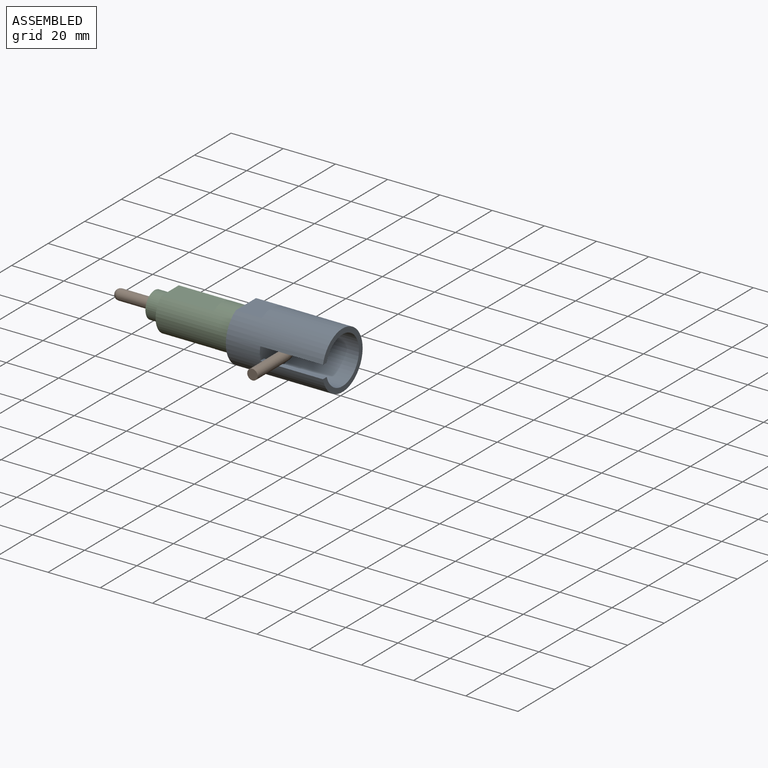
[diagram: assembled view]
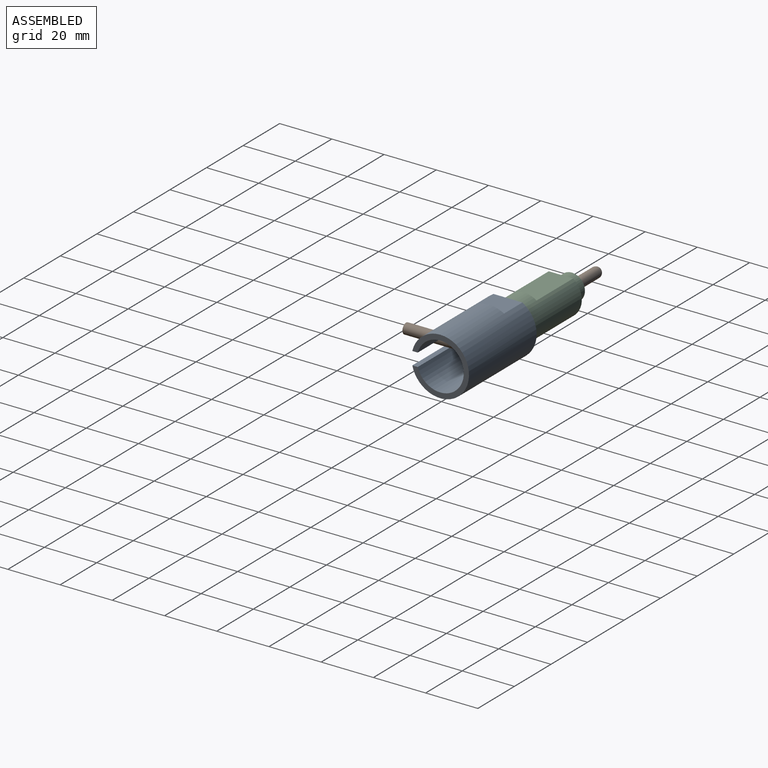
[diagram: assembled view, second angle]
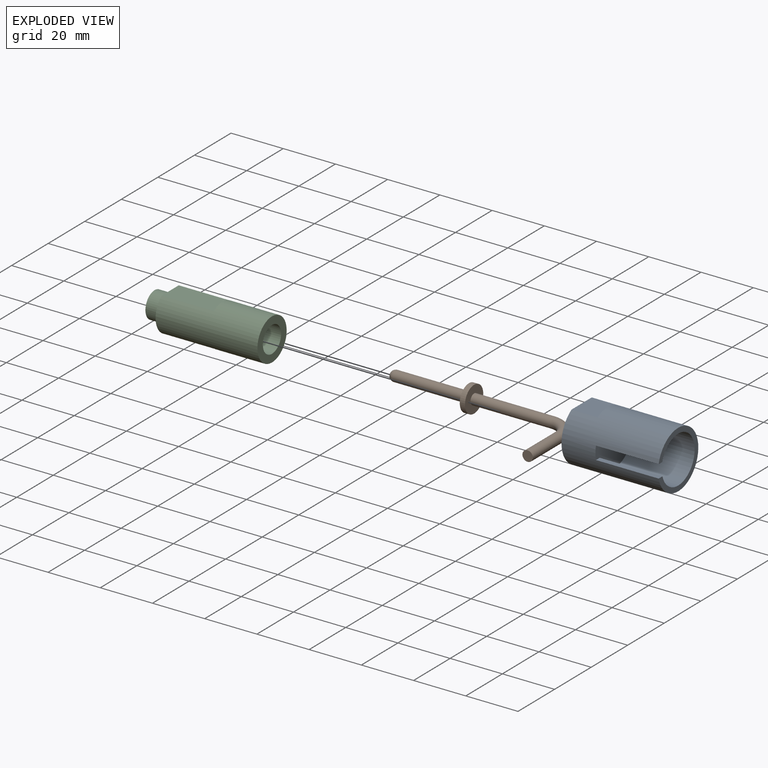
[diagram: exploded view]
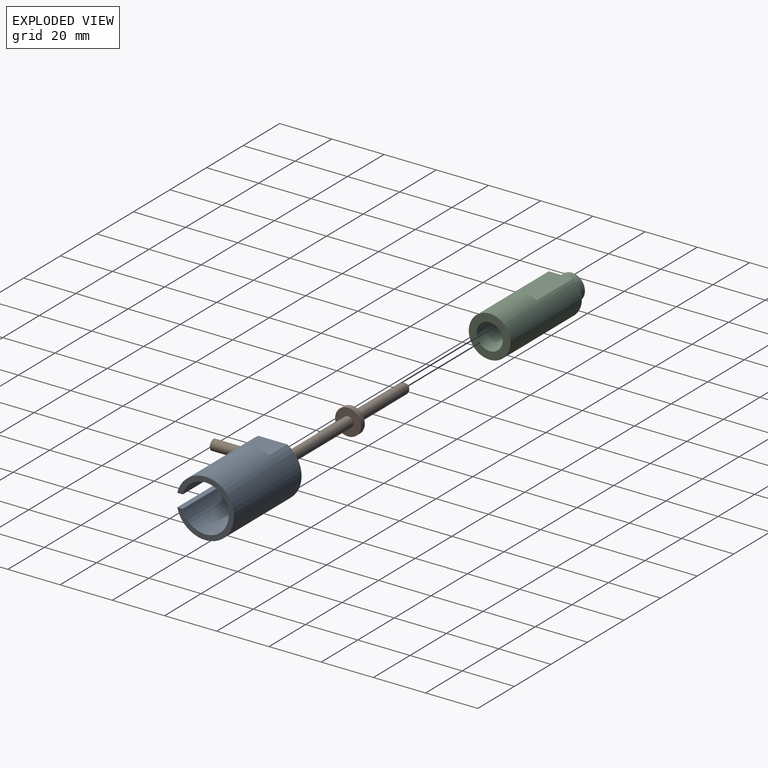
[diagram: exploded view, second angle]
ASSEMBLY  parts=3 mates=2
PART A: 14 faces, bbox 37x22x22 mm
  f0: plane 22x19mm, normal (-1,0,0), area 156.6mm2, adj f1,f3,f10,f12
  f1: cylinder r=11mm len=37mm, axis (1,0,0), area 2203.7mm2, adj f0,f2,f6,f8,f9,f10,f11,f12
  f2: plane 20x18mm, normal (1,0,0), area 244.9mm2, adj f1,f5,f6,f7,f8
  f3: cylinder r=8mm len=16mm, axis (1,0,0), area 502.7mm2, adj f0,f4
  f4: plane 16x16mm, normal (-1,0,0), area 181.4mm2, adj f3,f5
  f5: cylinder r=2.5mm len=5mm, axis (1,0,0), area 47.1mm2, adj f2,f4
  f6: plane 24x2.07mm, normal (0,0,-1), area 49.6mm2, adj f1,f2,f7,f9
  f7: cylinder r=9mm len=24mm, axis (-1,0,0), area 1235.6mm2, adj f2,f6,f8,f9
  f8: plane 24x2.07mm, normal (0,0,1), area 49.6mm2, adj f1,f2,f7,f9
  f9: plane 22x21.71mm, normal (1,0,0), area 115.6mm2, adj f1,f6,f7,f8
  f10: plane 11.09x10mm, normal (0,0,-1), area 110.9mm2, adj f0,f1,f11
  f11: plane 11.09x1.5mm, normal (-1,0,0), area 11.3mm2, adj f1,f10
  f12: plane 11.09x10mm, normal (0,0,1), area 110.9mm2, adj f0,f1,f13
  f13: plane 11.09x1.5mm, normal (-1,0,0), area 11.3mm2, adj f1,f12
PART B: 9 faces, bbox 72.8x30x10 mm
  f0: cylinder r=2mm len=30mm, axis (-1,0,0), area 377mm2, adj f1,f7
  f1: plane 10x10mm, normal (1,0,0), area 66mm2, adj f0,f2
  f2: cylinder r=5mm len=10mm, axis (-1,0,0), area 62.8mm2, adj f1,f3
  f3: plane 10x10mm, normal (-1,0,0), area 66mm2, adj f2,f4
  f4: cylinder r=2mm len=28mm, axis (-1,0,0), area 351.9mm2, adj f3,f5
  f5: sphere r=2mm, area 25.1mm2, adj f4
  f6: plane 4x4mm, normal (0,-1,0), area 12.6mm2, adj f8
  f7: torus R=8mm, axis (0,0,-1), area 157.9mm2, adj f0,f8
  f8: cylinder r=2mm len=17mm, axis (0,-1,0), area 213.6mm2, adj f6,f7
PART C: 12 faces, bbox 45x16x16 mm
  f0: cylinder r=8mm len=39mm, axis (1,0,0), area 1562mm2, adj f1,f6,f8,f9,f10,f11
  f1: plane 16x13mm, normal (-1,0,0), area 103.5mm2, adj f0,f7,f8,f10
  f2: plane 10x10mm, normal (-1,0,0), area 66mm2, adj f3,f7
  f3: cylinder r=2mm len=15mm, axis (1,0,0), area 188.5mm2, adj f2,f4
  f4: plane 10x10mm, normal (1,0,0), area 66mm2, adj f3,f5
  f5: cylinder r=5mm len=30mm, axis (1,0,0), area 942.5mm2, adj f4,f6
  f6: plane 16x16mm, normal (1,0,0), area 122.5mm2, adj f0,f5
  f7: cylinder r=5mm len=10mm, axis (1,0,0), area 188.5mm2, adj f1,f2
  f8: plane 20x9.33mm, normal (0,0,-1), area 186.5mm2, adj f0,f1,f9
  f9: plane 9.33x1.5mm, normal (-1,0,0), area 9.5mm2, adj f0,f8
  f10: plane 20x9.33mm, normal (0,0,1), area 186.5mm2, adj f0,f1,f11
  f11: plane 9.33x1.5mm, normal (-1,0,0), area 9.5mm2, adj f0,f10
PLACE A rot(axis=(1,0,0),0deg) t=(-11.3,0.08,-0.1)mm
PLACE B t=(-11.3,0.08,-0.1)mm
PLACE C t=(-11.3,0.08,-0.1)mm fixed
MATE fastened A.f1 <-> C.f0  axis (-1,0,0) through (33.7,0.08,-0.1)mm
MATE slider B.f0 <-> C.f0  axis (-1,0,0) through (3.7,0.08,-0.1)mm
